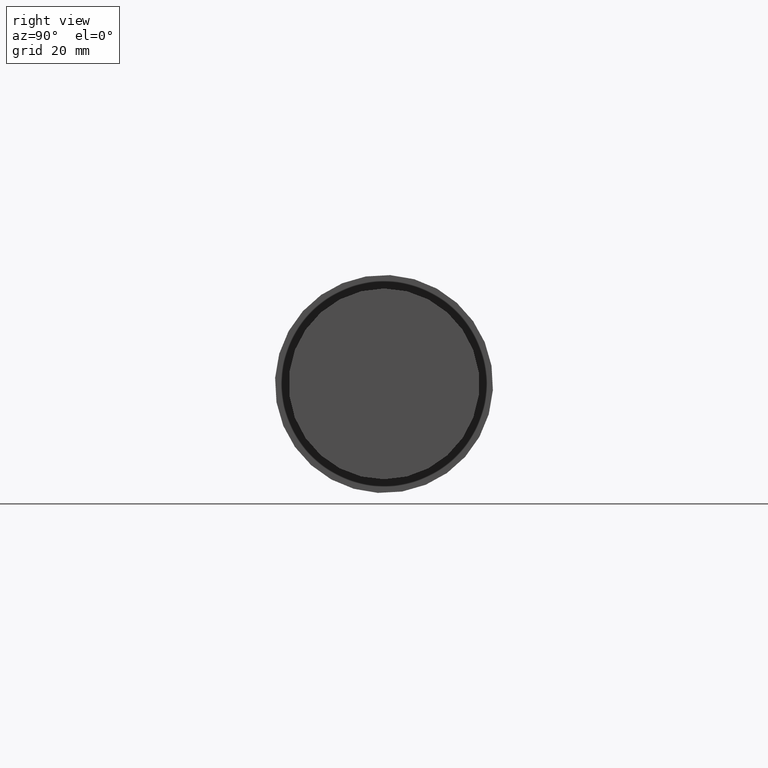
[diagram: clean part render]
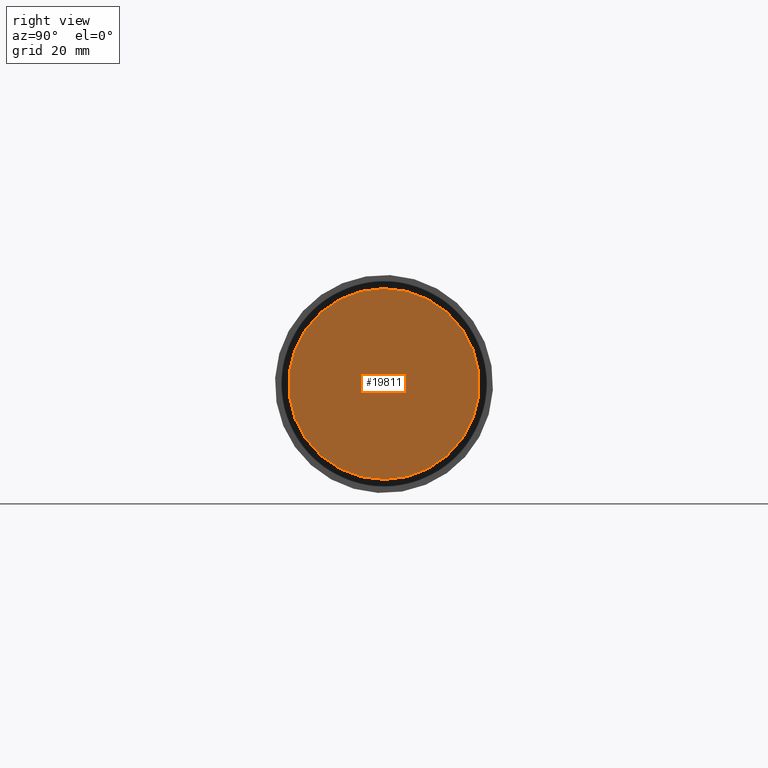
[diagram: same view with one face highlighted and labeled with its STEP entity id]
A machine part, right view. The second image highlights one B-rep face of the part: STEP entity #19811.
In plain terms, the highlighted planar face has unit normal (-1, 0, 0).
Its self-contained STEP definition (entity closure, byte-faithful):
#32 = DIRECTION ( 'NONE',  ( 1.000000000000000000, 0.000000000000000000, 0.000000000000000000 ) ) ;
#1601 = AXIS2_PLACEMENT_3D ( 'NONE', #34323, #21181, #32 ) ;
#3024 = CIRCLE ( 'NONE', #8871, 31.50000000000000000 ) ;
#5139 = CARTESIAN_POINT ( 'NONE',  ( 31.50000000000000000, 3.857637417314162689E-15, 0.000000000000000000 ) ) ;
#5245 = DIRECTION ( 'NONE',  ( 1.000000000000000000, 0.000000000000000000, -0.000000000000000000 ) ) ;
#6136 = VERTEX_POINT ( 'NONE', #5139 ) ;
#8687 = FACE_OUTER_BOUND ( 'NONE', #11151, .T. ) ;
#8871 = AXIS2_PLACEMENT_3D ( 'NONE', #29198, #40216, #23621 ) ;
#11151 = EDGE_LOOP ( 'NONE', ( #32782, #43830 ) ) ;
#18217 = CARTESIAN_POINT ( 'NONE',  ( -31.50000000000000000, 0.000000000000000000, 0.000000000000000000 ) ) ;
#19031 = PLANE ( 'NONE',  #27558 ) ;
#19811 = ADVANCED_FACE ( 'NONE', ( #8687 ), #19031, .F. ) ;
#21181 = DIRECTION ( 'NONE',  ( 0.000000000000000000, 0.000000000000000000, 1.000000000000000000 ) ) ;
#22026 = CARTESIAN_POINT ( 'NONE',  ( 0.000000000000000000, 0.000000000000000000, 0.000000000000000000 ) ) ;
#23621 = DIRECTION ( 'NONE',  ( 1.000000000000000000, 0.000000000000000000, 0.000000000000000000 ) ) ;
#25915 = VERTEX_POINT ( 'NONE', #18217 ) ;
#27558 = AXIS2_PLACEMENT_3D ( 'NONE', #22026, #33067, #5245 ) ;
#29198 = CARTESIAN_POINT ( 'NONE',  ( 0.000000000000000000, 0.000000000000000000, 0.000000000000000000 ) ) ;
#32782 = ORIENTED_EDGE ( 'NONE', *, *, #39306, .F. ) ;
#33067 = DIRECTION ( 'NONE',  ( 0.000000000000000000, 0.000000000000000000, 1.000000000000000000 ) ) ;
#34323 = CARTESIAN_POINT ( 'NONE',  ( 0.000000000000000000, 0.000000000000000000, 0.000000000000000000 ) ) ;
#39306 = EDGE_CURVE ( 'NONE', #25915, #6136, #3024, .T. ) ;
#40216 = DIRECTION ( 'NONE',  ( 0.000000000000000000, 0.000000000000000000, 1.000000000000000000 ) ) ;
#41250 = CIRCLE ( 'NONE', #1601, 31.50000000000000000 ) ;
#41803 = EDGE_CURVE ( 'NONE', #6136, #25915, #41250, .T. ) ;
#43830 = ORIENTED_EDGE ( 'NONE', *, *, #41803, .F. ) ;